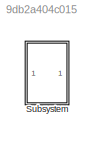
MODEL slx_9db2a404c015
KIND model
CONFIG AbsTol = auto
CONFIG EnableMultiTasking = off
CONFIG FixedStep = auto
CONFIG MaxStep = auto
CONFIG MinStep = auto
CONFIG RelTol = 1e-3
CONFIG SampleTimeConstraint = Unconstrained
CONFIG Solver = ode4
CONFIG SolverName = ode4
CONFIG StartTime = 0.0
CONFIG StopTime = 10.0
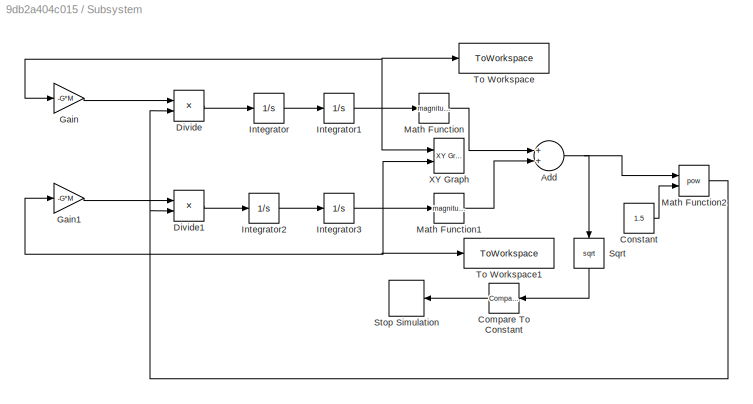
BLOCK [SubSystem] Subsystem
  Ports = []
  RequestExecContextInheritance = off
BLOCK [Sum] Subsystem/Add
  InputSameDT = off
  OutDataTypeStr = Inherit: Inherit via internal rule
  Ports = [2, 1]
  SaturateOnIntegerOverflow = off
BLOCK [Reference] Subsystem/Compare To Constant  REF=simulink/Logic and Bit
Operations/Compare
To Constant
  Ports = [1, 1]
  SourceBlock = simulink/Logic and Bit\nOperations/Compare\nTo Constant
  SourceProductBaseCode = SL
  SourceProductName = Simulink
  SourceType = Compare To Constant
BLOCK [Constant] Subsystem/Constant
  Value = 1.5
BLOCK [Product] Subsystem/Divide
  InputSameDT = off
  Inputs = */
  OutDataTypeStr = Inherit: Inherit via internal rule
  Ports = [2, 1]
  RndMeth = Floor
  SaturateOnIntegerOverflow = off
BLOCK [Product] Subsystem/Divide1
  InputSameDT = off
  Inputs = */
  OutDataTypeStr = Inherit: Inherit via internal rule
  Ports = [2, 1]
  RndMeth = Floor
  SaturateOnIntegerOverflow = off
BLOCK [Gain] Subsystem/Gain
  Gain = -G*M
  OutDataTypeStr = Inherit: Inherit via internal rule
  ParamDataTypeStr = Inherit: Inherit via internal rule
  SaturateOnIntegerOverflow = off
BLOCK [Gain] Subsystem/Gain1
  Gain = -G*M
  OutDataTypeStr = Inherit: Inherit via internal rule
  ParamDataTypeStr = Inherit: Inherit via internal rule
  SaturateOnIntegerOverflow = off
BLOCK [Integrator] Subsystem/Integrator
  InitialCondition = Vx
  Ports = [1, 1]
BLOCK [Integrator] Subsystem/Integrator1
  InitialCondition = x
  Ports = [1, 1]
BLOCK [Integrator] Subsystem/Integrator2
  InitialCondition = Vy
  Ports = [1, 1]
BLOCK [Integrator] Subsystem/Integrator3
  InitialCondition = y
  Ports = [1, 1]
BLOCK [Math] Subsystem/Math Function
  Operator = magnitude^2
  Ports = [1, 1]
  SignedPower = off
BLOCK [Math] Subsystem/Math Function1
  Operator = magnitude^2
  Ports = [1, 1]
  SignedPower = off
BLOCK [Math] Subsystem/Math Function2
  Operator = pow
  Ports = [2, 1]
  SignedPower = off
BLOCK [Sqrt] Subsystem/Sqrt
BLOCK [Stop] Subsystem/Stop Simulation
BLOCK [ToWorkspace] Subsystem/To Workspace
  FixptAsFi = on
  MaxDataPoints = inf
  Ports = [1]
  SampleTime = -1
  VariableName = x
BLOCK [ToWorkspace] Subsystem/To Workspace1
  FixptAsFi = on
  MaxDataPoints = inf
  Ports = [1]
  SampleTime = -1
  VariableName = y
BLOCK [Reference] Subsystem/XY Graph  REF=simulink/Sinks/XY Graph
  Ports = [2]
  SourceBlock = simulink/Sinks/XY Graph
  SourceProductBaseCode = SL
  SourceProductName = Simulink
  SourceType = XY scope.
NET Subsystem/Add:1 -> Subsystem/Math Function2:1, Subsystem/Sqrt:1
LINE Subsystem/Compare To Constant:1 -> Subsystem/Stop Simulation:1
LINE Subsystem/Constant:1 -> Subsystem/Math Function2:2
LINE Subsystem/Divide1:1 -> Subsystem/Integrator2:1
LINE Subsystem/Divide:1 -> Subsystem/Integrator:1
LINE Subsystem/Gain1:1 -> Subsystem/Divide1:1
LINE Subsystem/Gain:1 -> Subsystem/Divide:1
NET Subsystem/Integrator1:1 -> Subsystem/Gain:1, Subsystem/Math Function:1, Subsystem/To Workspace:1, Subsystem/XY Graph:1
LINE Subsystem/Integrator2:1 -> Subsystem/Integrator3:1
NET Subsystem/Integrator3:1 -> Subsystem/Gain1:1, Subsystem/Math Function1:1, Subsystem/To Workspace1:1, Subsystem/XY Graph:2
LINE Subsystem/Integrator:1 -> Subsystem/Integrator1:1
LINE Subsystem/Math Function1:1 -> Subsystem/Add:2
NET Subsystem/Math Function2:1 -> Subsystem/Divide1:2, Subsystem/Divide:2
LINE Subsystem/Math Function:1 -> Subsystem/Add:1
LINE Subsystem/Sqrt:1 -> Subsystem/Compare To Constant:1
note: NET lines group one-source signal fan-out (src -> all destinations, sorted); 1:1 wires keep LINE
